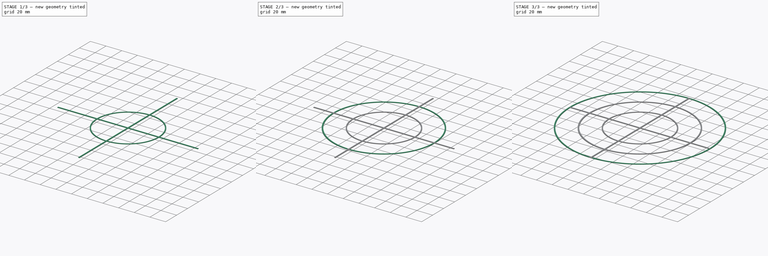
[diagram: build sequence overview — one tinted view per stage of 3, left to right]
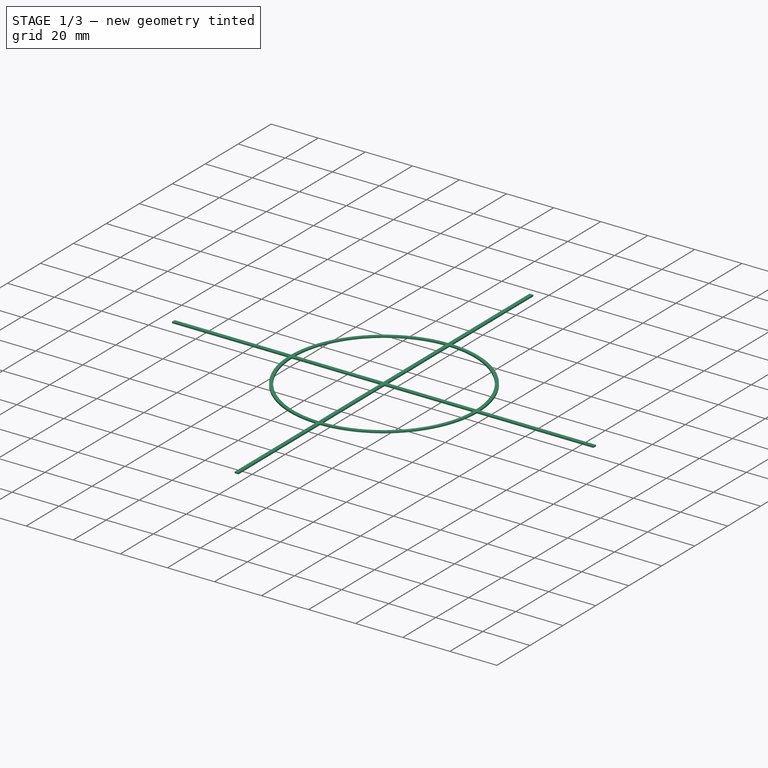
[diagram: stage 1 of 3 — iso view after this stage's code; geometry added in this stage tinted green]
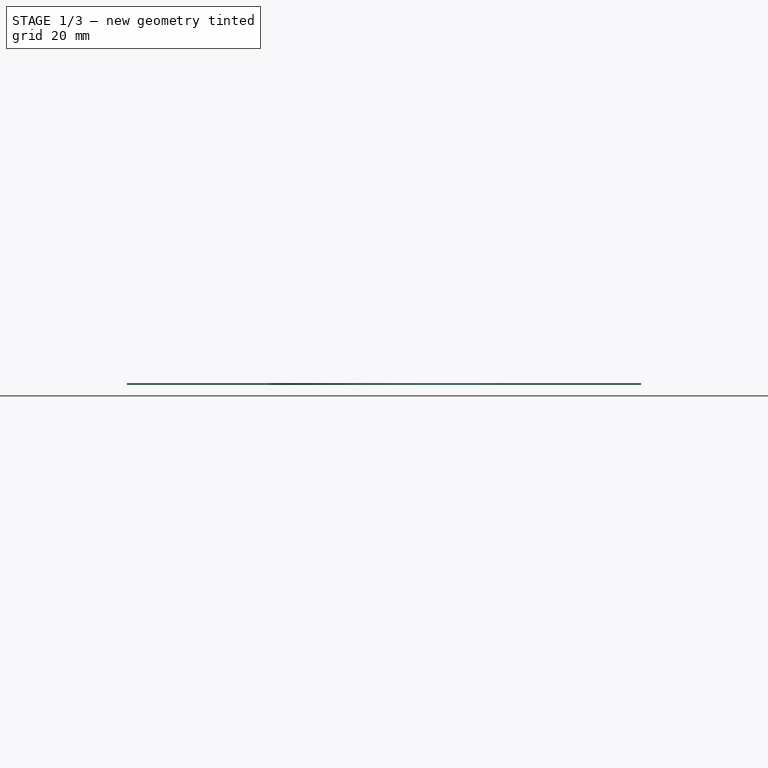
[diagram: stage 1 of 3 — front view after this stage's code; geometry added in this stage tinted green]
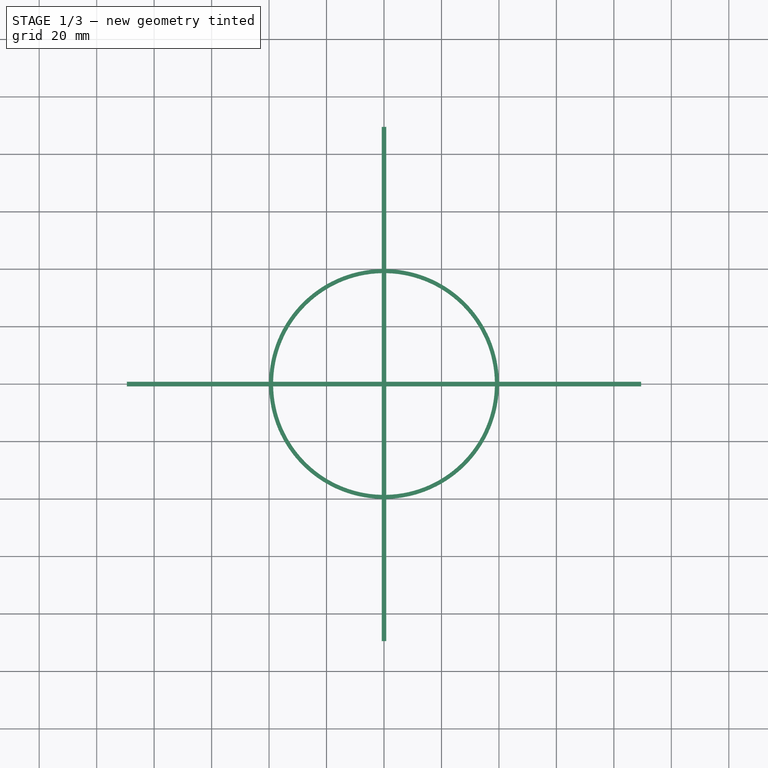
[diagram: stage 1 of 3 — top view after this stage's code; geometry added in this stage tinted green]
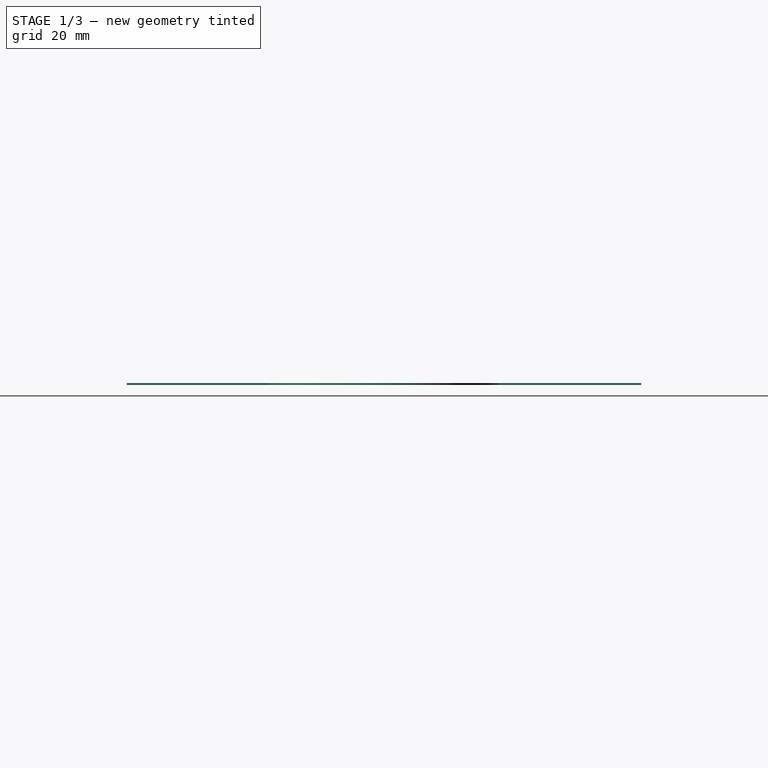
[diagram: stage 1 of 3 — right view after this stage's code; geometry added in this stage tinted green]
FCSTD DOCUMENT  (FreeCAD 0.16R)
Label: kossel_calibration
License: All rights reserved
LicenseURL: http://en.wikipedia.org/wiki/All_rights_reserved
objects: Sketcher::SketchObject×4, PartDesign::Pad×4, Part::MultiFuse×1
note: 13 computed .brp shape members not serialized (recipe doc carries the construction recipe); baked Part::Feature solids carry a one-line shape summary decoded from their .brp

FEATURE [Sketcher::SketchObject] Sketch002
  sketch-geometry (2):
    g0: Circle CenterX=0 CenterY=0 CenterZ=0 NormalX=0 NormalY=0 NormalZ=1 Radius=40
    g1: Circle CenterX=0 CenterY=0 CenterZ=0 NormalX=0 NormalY=0 NormalZ=1 Radius=38.6
  constraints (4):
    c: Coincident(g0,g-1)
    c: Coincident(g1,g-1)
    c: Radius(g0) = 40
    c: Radius(g1) = 38.6
FEATURE [PartDesign::Pad] Pad002
  Length = 0.6
  Length2 = 100
  Sketch = -> Sketch002
  Type = 0
FEATURE [Sketcher::SketchObject] Sketch003
  sketch-geometry (12):
    g0: LineSegment StartX=-0.8 StartY=89.5 StartZ=0 EndX=0.8 EndY=89.5 EndZ=0
    g1: LineSegment StartX=0.8 StartY=-89.5 StartZ=0 EndX=-0.8 EndY=-89.5 EndZ=0
    g2: LineSegment StartX=89.5 StartY=0.8 StartZ=0 EndX=89.5 EndY=-0.8 EndZ=0
    g3: LineSegment StartX=-89.5 StartY=-0.8 StartZ=0 EndX=-89.5 EndY=0.8 EndZ=0
    g4: LineSegment StartX=-0.8 StartY=89.5 StartZ=0 EndX=-0.8 EndY=0.8 EndZ=0
    g5: LineSegment StartX=-0.8 StartY=-89.5 StartZ=0 EndX=-0.8 EndY=-0.8 EndZ=0
    g6: LineSegment StartX=0.8 StartY=89.5 StartZ=0 EndX=0.8 EndY=0.8 EndZ=0
    g7: LineSegment StartX=0.8 StartY=-89.5 StartZ=0 EndX=0.8 EndY=-0.8 EndZ=0
    g8: LineSegment StartX=-89.5 StartY=0.8 StartZ=0 EndX=-0.8 EndY=0.8 EndZ=0
    g9: LineSegment StartX=-89.5 StartY=-0.8 StartZ=0 EndX=-0.8 EndY=-0.8 EndZ=0
    g10: LineSegment StartX=0.8 StartY=0.8 StartZ=0 EndX=89.5 EndY=0.8 EndZ=0
    g11: LineSegment StartX=0.8 StartY=-0.8 StartZ=0 EndX=89.5 EndY=-0.8 EndZ=0
  constraints (39):
    c: Symmetric(g0,g1,g-1)
    c: DistanceY(g1,g0) = 179
    c: Vertical(g2)
    c: Vertical(g3)
    c: DistanceX(g0,g0) = 1.6
    c: Equal(g0,g3)
    c: Symmetric(g3,g2,g-1)
    c: Coincident(g4,g0)
    c: Vertical(g4)
    c: Coincident(g5,g1)
    c: Vertical(g5)
    c: Equal(g0,g1)
    c: Coincident(g6,g0)
    c: Vertical(g6)
    c: Symmetric(g0,g0,g-2)
    c: Symmetric(g1,g1,g-2)
    c: Coincident(g7,g1)
    c: Vertical(g7)
    c: Equal(g0,g2)
    c: Symmetric(g2,g2,g-1)
    c: Symmetric(g3,g3,g-1)
    c: Coincident(g8,g3)
    c: Coincident(g8,g4)
    c: Horizontal(g8)
    c: Coincident(g9,g3)
    c: Coincident(g9,g5)
    c: Horizontal(g9)
    c: Coincident(g10,g6)
    c: Coincident(g10,g2)
    c: Coincident(g11,g7)
    c: Coincident(g11,g2)
    c: Horizontal(g11)
    c: Equal(g4,g6)
    c: Equal(g6,g10)
    c: Equal(g10,g11)
    c: Equal(g11,g7)
    c: Equal(g7,g5)
    c: Equal(g5,g9)
    c: Equal(g9,g8)
FEATURE [PartDesign::Pad] Pad003
  Length = 0.6
  Length2 = 100
  Sketch = -> Sketch003
  Type = 0
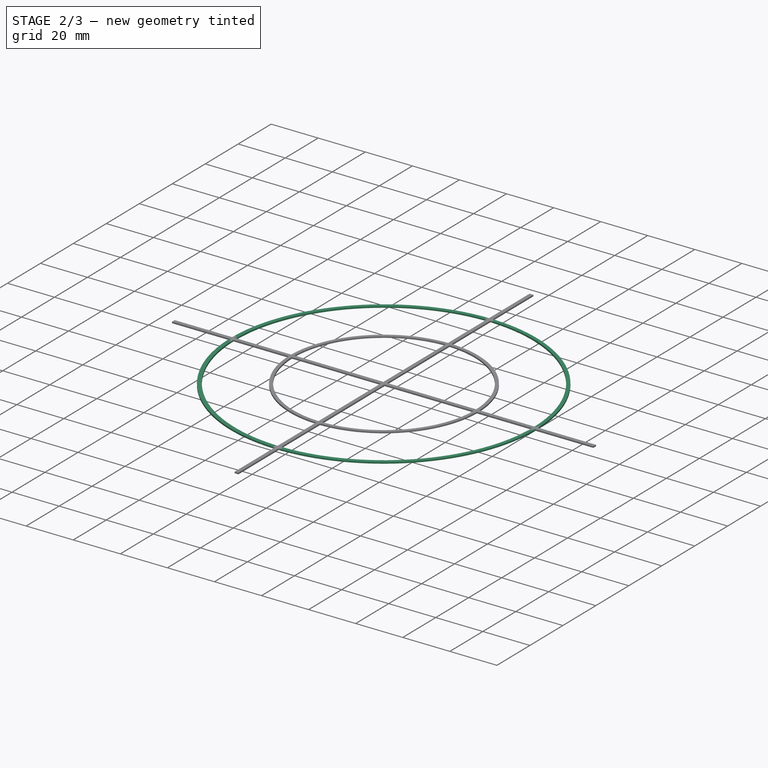
[diagram: stage 2 of 3 — iso view after this stage's code; geometry added in this stage tinted green]
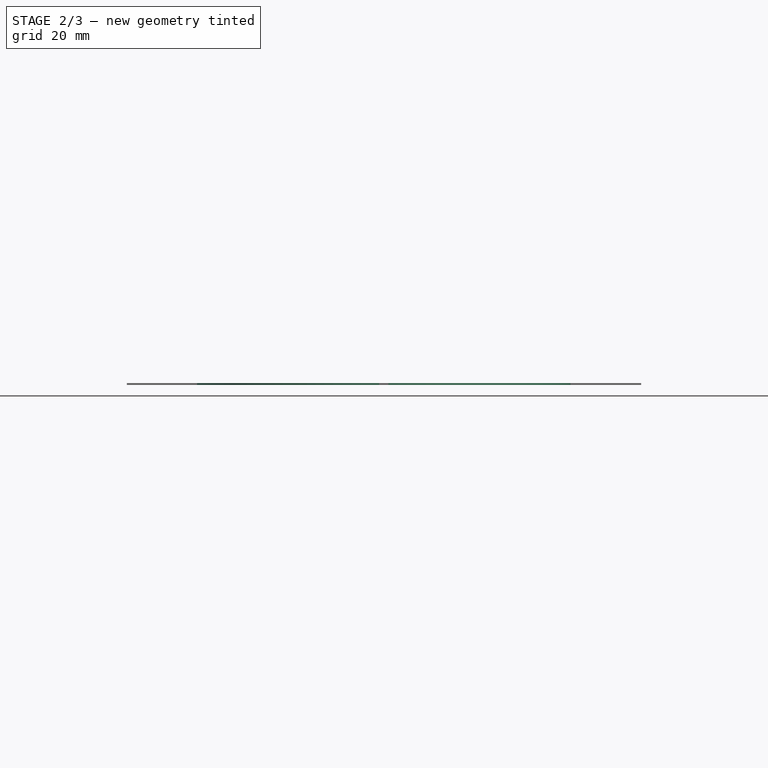
[diagram: stage 2 of 3 — front view after this stage's code; geometry added in this stage tinted green]
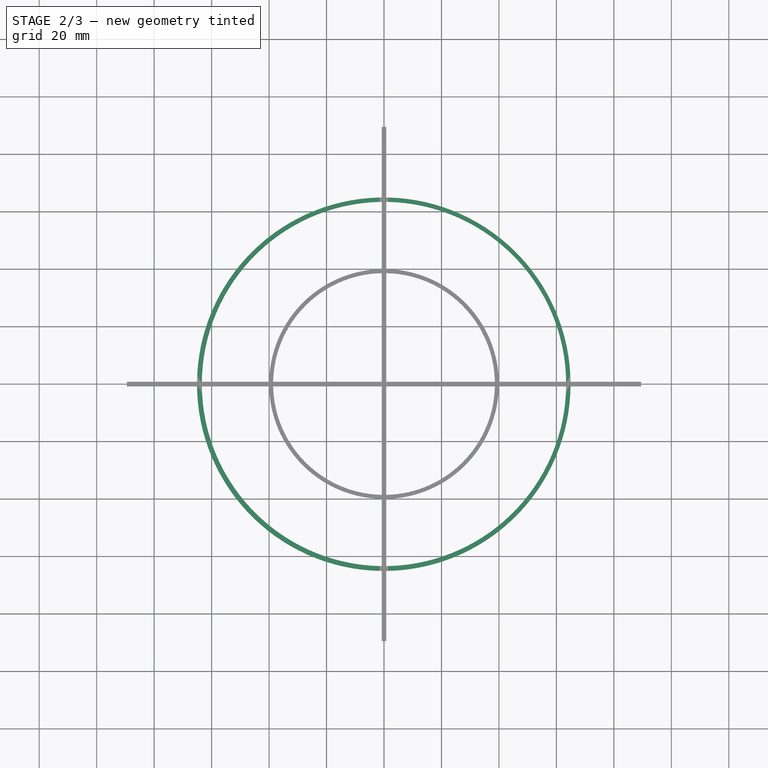
[diagram: stage 2 of 3 — top view after this stage's code; geometry added in this stage tinted green]
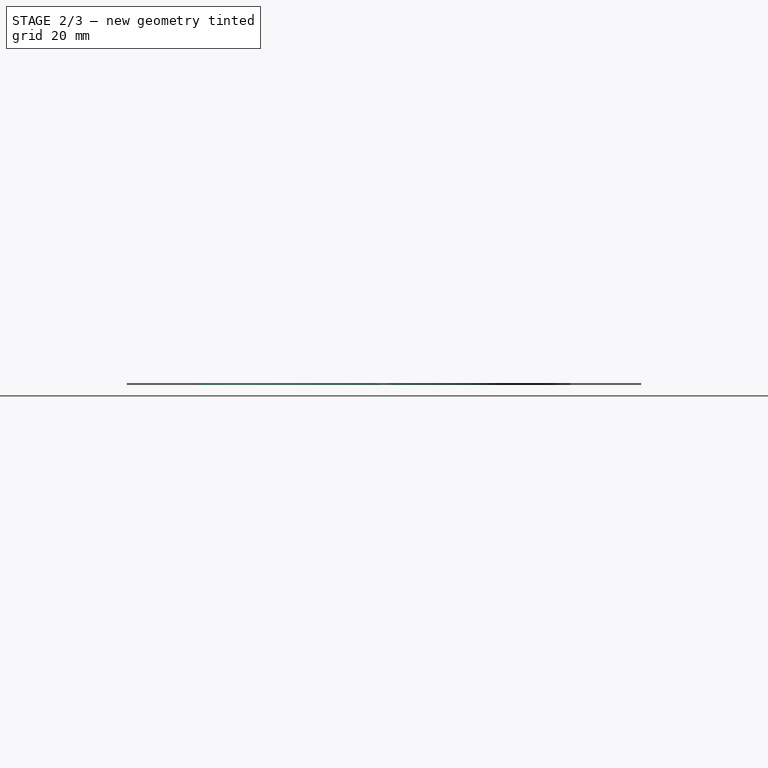
[diagram: stage 2 of 3 — right view after this stage's code; geometry added in this stage tinted green]
FEATURE [Sketcher::SketchObject] Sketch001
  sketch-geometry (2):
    g0: Circle CenterX=-0.080893 CenterY=-0.073995 CenterZ=0 NormalX=0 NormalY=0 NormalZ=1 Radius=65
    g1: Circle CenterX=0 CenterY=0 CenterZ=0 NormalX=0 NormalY=0 NormalZ=1 Radius=63.4
  constraints (3):
    c: Coincident(g1,g-1)
    c: Radius(g0) = 65
    c: Radius(g1) = 63.4
FEATURE [PartDesign::Pad] Pad001
  Length = 0.6
  Length2 = 100
  Sketch = -> Sketch001
  Type = 0
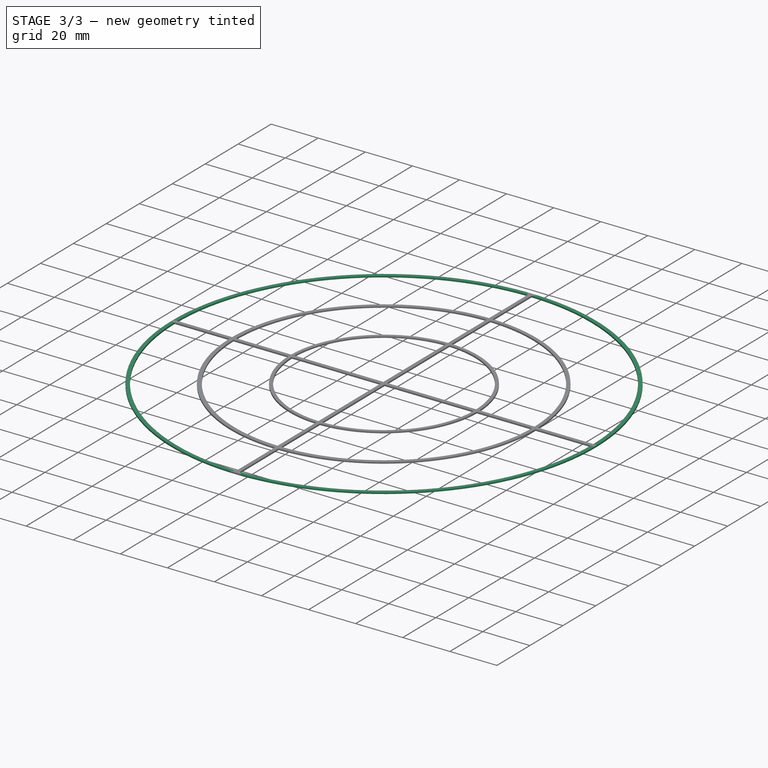
[diagram: stage 3 of 3 — iso view after this stage's code; geometry added in this stage tinted green]
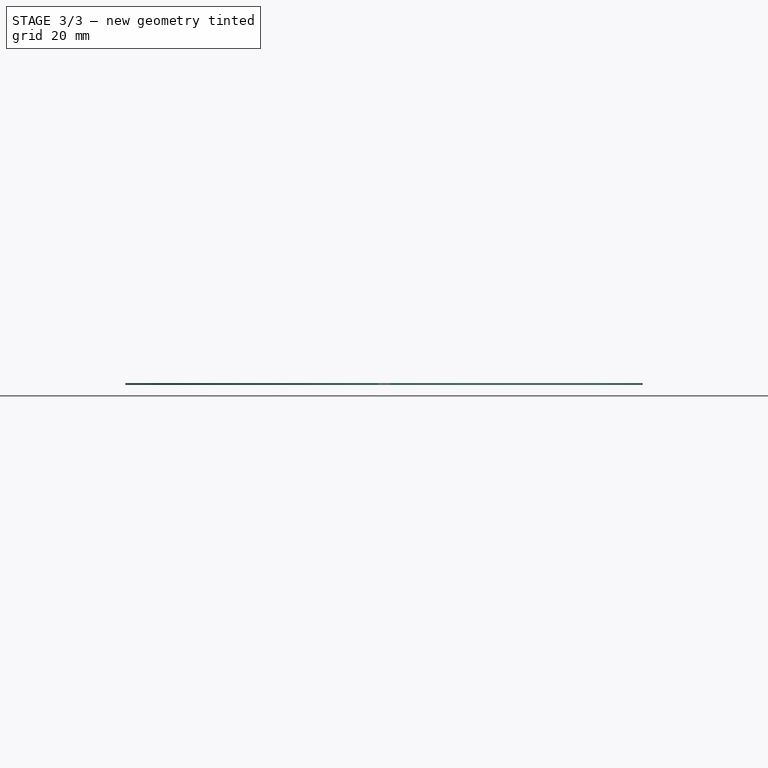
[diagram: stage 3 of 3 — front view after this stage's code; geometry added in this stage tinted green]
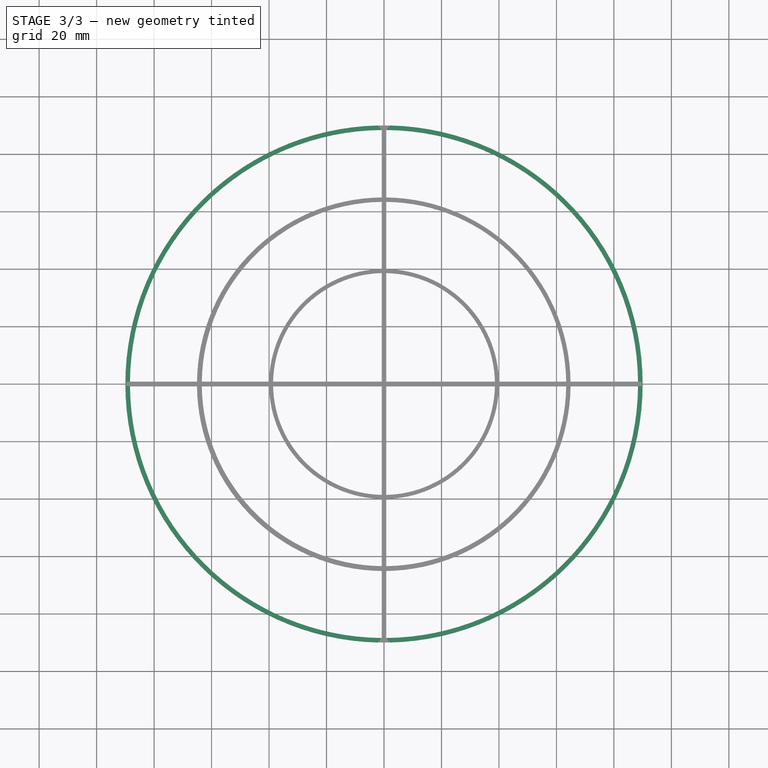
[diagram: stage 3 of 3 — top view after this stage's code; geometry added in this stage tinted green]
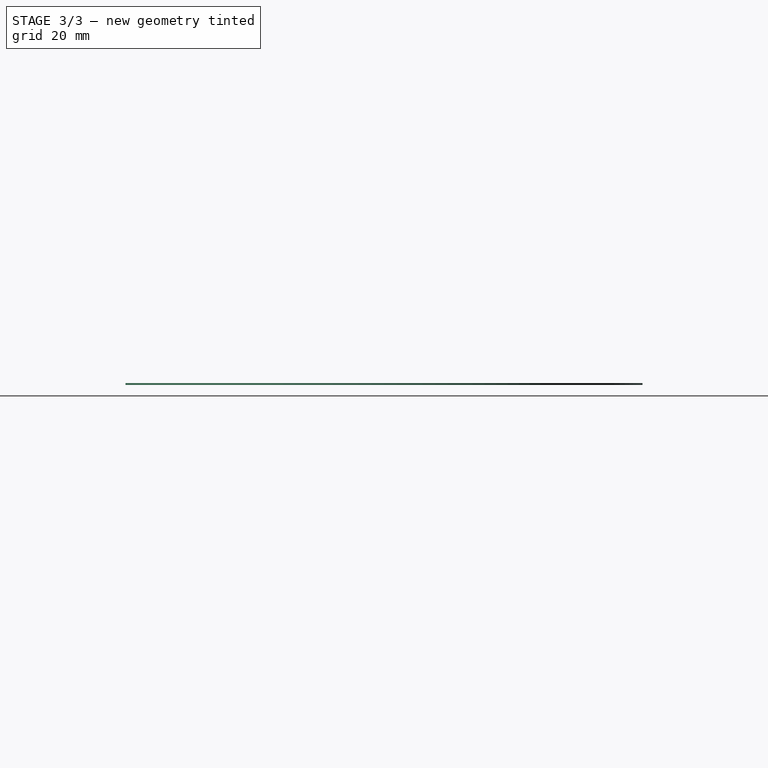
[diagram: stage 3 of 3 — right view after this stage's code; geometry added in this stage tinted green]
FEATURE [Sketcher::SketchObject] Sketch
  sketch-geometry (2):
    g0: Circle CenterX=0 CenterY=0 CenterZ=0 NormalX=0 NormalY=0 NormalZ=1 Radius=90
    g1: Circle CenterX=0 CenterY=0 CenterZ=0 NormalX=0 NormalY=0 NormalZ=1 Radius=88.4
  constraints (4):
    c: Coincident(g0,g-1)
    c: Radius(g0) = 90
    c: Coincident(g1,g-1)
    c: Radius(g1) = 88.4
FEATURE [PartDesign::Pad] Pad
  Length = 0.6
  Length2 = 100
  Sketch = -> Sketch
  Type = 0
FEATURE [Part::MultiFuse] Fusion
  Shapes = -> [Pad,Pad001,Pad003,Pad002]
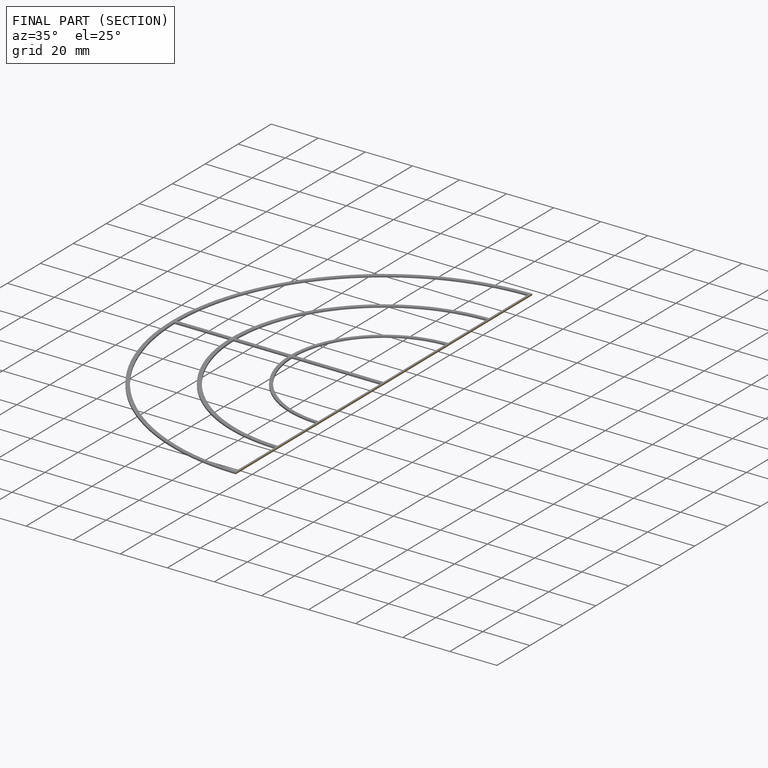
[diagram: finished part — half-section view (interior)]
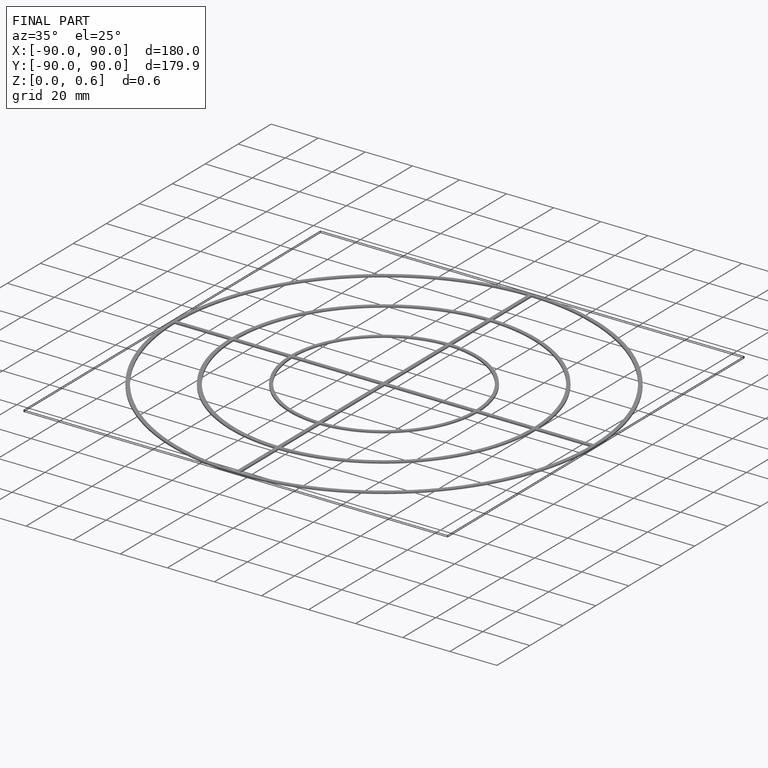
[diagram: finished part — iso view with bounding-box wireframe]
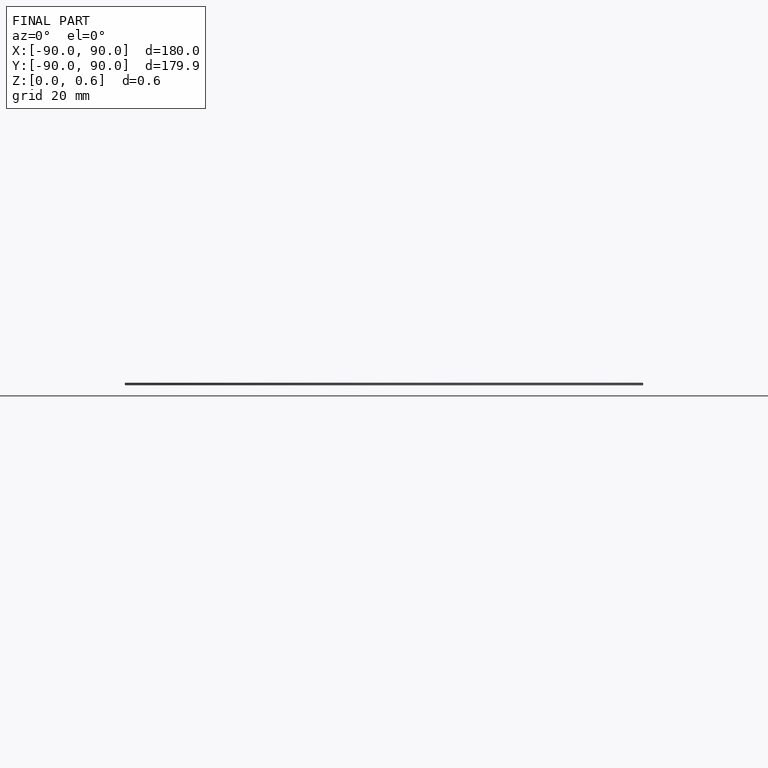
[diagram: finished part — front view with bounding-box wireframe]
